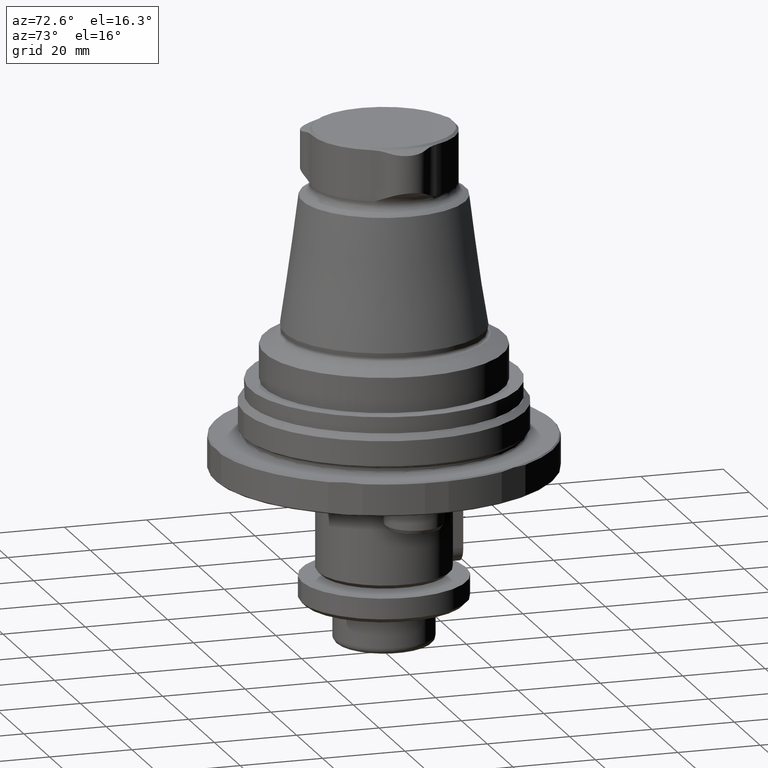
[diagram: clean part render]
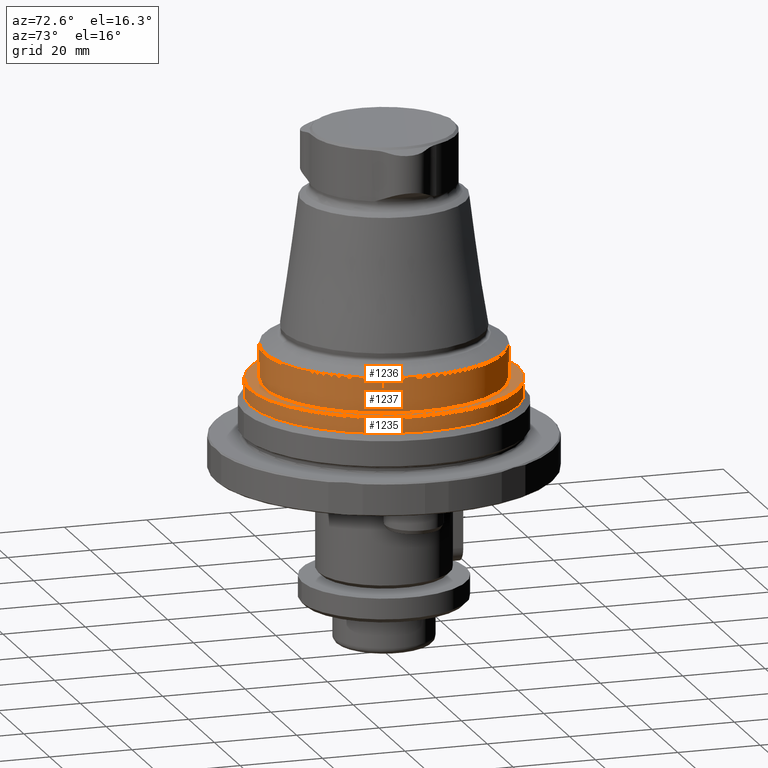
[diagram: same view with one multi-face feature highlighted, each face labeled with its STEP entity id]
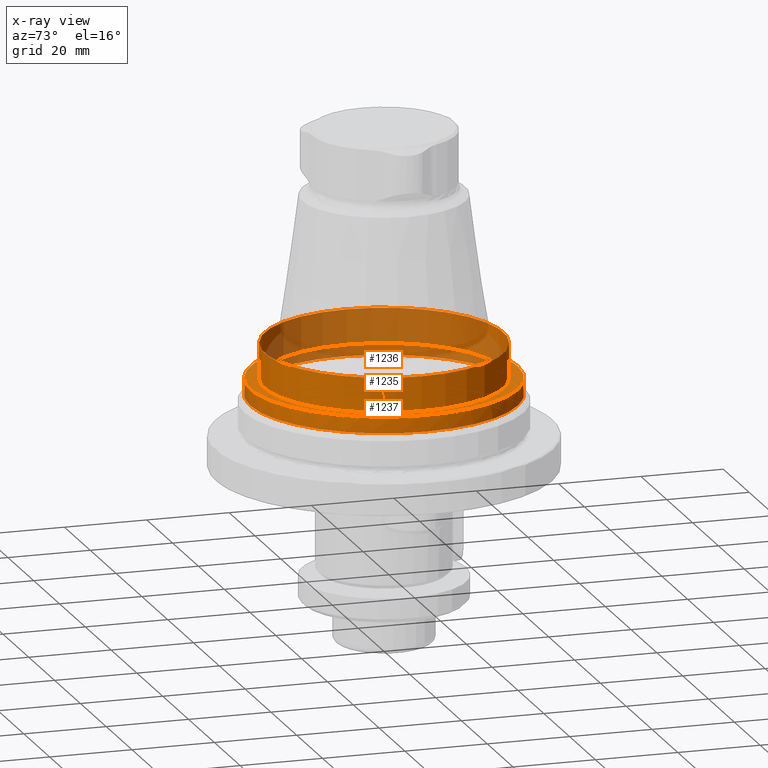
[diagram: x-ray of the same camera — body ghosted, the whole feature saturated]
A machine part, auxiliary view. The highlighted faces form ONE feature: a stepped (counterbored) hole: 2 coaxial cylindrical walls of radii 29 -> 32.48 mm joined by 1 annular planar shoulder face(s). The faces share edges in the B-rep.
The next image is the same camera in x-ray: the body ghosted and the whole hole feature saturated, so the bore chain is visible through the body.
Their STEP definitions:
[1] entity #1235 (Cylinder):
#197=CYLINDRICAL_SURFACE('',#1407,32.48);
#534=ORIENTED_EDGE('',*,*,#699,.T.);
#535=ORIENTED_EDGE('',*,*,#541,.T.);
#541=EDGE_CURVE('',#702,#702,#820,.F.);
#699=EDGE_CURVE('',#817,#817,#893,.T.);
#702=VERTEX_POINT('',#1777);
#817=VERTEX_POINT('',#2305);
#820=CIRCLE('',#1253,32.48);
#893=CIRCLE('',#1408,32.48);
#1014=EDGE_LOOP('',(#534));
#1015=EDGE_LOOP('',(#535));
#1139=FACE_BOUND('',#1014,.T.);
#1140=FACE_BOUND('',#1015,.T.);
#1235=ADVANCED_FACE('',(#1139,#1140),#197,.T.);
#1253=AXIS2_PLACEMENT_3D('',#1776,#1418,#1419);
#1407=AXIS2_PLACEMENT_3D('',#2303,#1762,#1763);
#1408=AXIS2_PLACEMENT_3D('',#2304,#1764,#1765);
#1418=DIRECTION('',(-1.04225259501902E-17,1.66533453693774E-16,-1.));
#1419=DIRECTION('',(0.,1.,1.66533453693774E-16));
#1762=DIRECTION('',(-7.92532678082119E-17,-2.56037263399992E-16,1.));
#1763=DIRECTION('',(-1.62630325872826E-18,-1.,-4.22570717093766E-16));
#1764=DIRECTION('',(1.40483585499331E-16,2.56037263399992E-16,-1.));
#1765=DIRECTION('',(1.62630325872826E-18,1.,4.22570717093766E-16));
#1776=CARTESIAN_POINT('',(7.88617976811477E-15,8.84490673141872E-15,8.55477512034114));
#1777=CARTESIAN_POINT('',(7.88617976811477E-15,32.48,8.55477512034115));
#2303=CARTESIAN_POINT('',(7.56690779759716E-15,8.68870806312027E-15,10.53));
#2304=CARTESIAN_POINT('',(7.41394899072731E-15,8.19455614475828E-15,12.46));
#2305=CARTESIAN_POINT('',(7.4667713205708E-15,32.48,12.46));
[2] entity #1236 (Cylinder):
#198=CYLINDRICAL_SURFACE('',#1409,29.);
#536=ORIENTED_EDGE('',*,*,#698,.T.);
#537=ORIENTED_EDGE('',*,*,#700,.F.);
#698=EDGE_CURVE('',#816,#816,#892,.T.);
#700=EDGE_CURVE('',#818,#818,#894,.T.);
#816=VERTEX_POINT('',#2302);
#818=VERTEX_POINT('',#2308);
#892=CIRCLE('',#1406,29.);
#894=CIRCLE('',#1410,29.);
#1016=EDGE_LOOP('',(#536));
#1017=EDGE_LOOP('',(#537));
#1141=FACE_BOUND('',#1016,.T.);
#1142=FACE_BOUND('',#1017,.T.);
#1236=ADVANCED_FACE('',(#1141,#1142),#198,.T.);
#1406=AXIS2_PLACEMENT_3D('',#2301,#1760,#1761);
#1409=AXIS2_PLACEMENT_3D('',#2306,#1766,#1767);
#1410=AXIS2_PLACEMENT_3D('',#2307,#1768,#1769);
#1760=DIRECTION('',(1.22461692971323E-16,1.66533453693774E-16,-1.));
#1761=DIRECTION('',(-1.,2.03939686757009E-32,-1.22461692971323E-16));
#1766=DIRECTION('',(1.22461692971323E-16,1.66533453693774E-16,-1.));
#1767=DIRECTION('',(-1.,2.03939686757009E-32,-1.22461692971323E-16));
#1768=DIRECTION('',(1.22461692971323E-16,1.66533453693774E-16,-1.));
#1769=DIRECTION('',(-1.,2.03939686757009E-32,-1.22461692971323E-16));
#2301=CARTESIAN_POINT('',(6.37646553852014E-15,6.78370105812595E-15,20.9319019232415));
#2302=CARTESIAN_POINT('',(-29.,6.78370105812595E-15,20.9319019232415));
#2306=CARTESIAN_POINT('',(0.,-1.8875397415399E-15,73.0009643688614));
#2307=CARTESIAN_POINT('',(7.4139489907273E-15,8.19455614475828E-15,12.46));
#2308=CARTESIAN_POINT('',(-29.,8.19455614475828E-15,12.46));
[3] entity #1237 (Plane):
#43=PLANE('',#1411);
#538=ORIENTED_EDGE('',*,*,#699,.F.);
#539=ORIENTED_EDGE('',*,*,#700,.T.);
#699=EDGE_CURVE('',#817,#817,#893,.T.);
#700=EDGE_CURVE('',#818,#818,#894,.T.);
#817=VERTEX_POINT('',#2305);
#818=VERTEX_POINT('',#2308);
#893=CIRCLE('',#1408,32.48);
#894=CIRCLE('',#1410,29.);
#1018=EDGE_LOOP('',(#538));
#1019=EDGE_LOOP('',(#539));
#1143=FACE_BOUND('',#1018,.T.);
#1144=FACE_BOUND('',#1019,.T.);
#1237=ADVANCED_FACE('',(#1143,#1144),#43,.T.);
#1408=AXIS2_PLACEMENT_3D('',#2304,#1764,#1765);
#1410=AXIS2_PLACEMENT_3D('',#2307,#1768,#1769);
#1411=AXIS2_PLACEMENT_3D('',#2309,#1770,#1771);
#1764=DIRECTION('',(1.40483585499331E-16,2.56037263399992E-16,-1.));
#1765=DIRECTION('',(1.62630325872826E-18,1.,4.22570717093766E-16));
#1768=DIRECTION('',(1.22461692971323E-16,1.66533453693774E-16,-1.));
#1769=DIRECTION('',(-1.,2.03939686757009E-32,-1.22461692971323E-16));
#1770=DIRECTION('',(-1.40483585499331E-16,-2.56037263399992E-16,1.));
#1771=DIRECTION('',(1.,-1.62630325872829E-18,1.40483585499331E-16));
#2304=CARTESIAN_POINT('',(7.41394899072731E-15,8.19455614475828E-15,12.46));
#2305=CARTESIAN_POINT('',(7.4667713205708E-15,32.48,12.46));
#2307=CARTESIAN_POINT('',(7.4139489907273E-15,8.19455614475828E-15,12.46));
#2308=CARTESIAN_POINT('',(-29.,8.19455614475828E-15,12.46));
#2309=CARTESIAN_POINT('',(7.41394899072731E-15,8.19455614475828E-15,12.46));